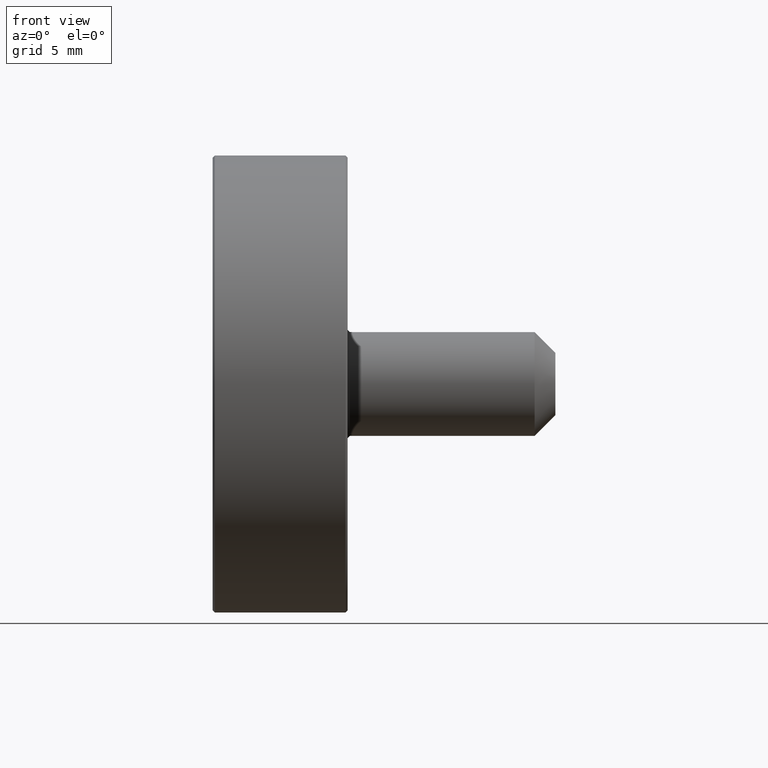
[diagram: clean part render]
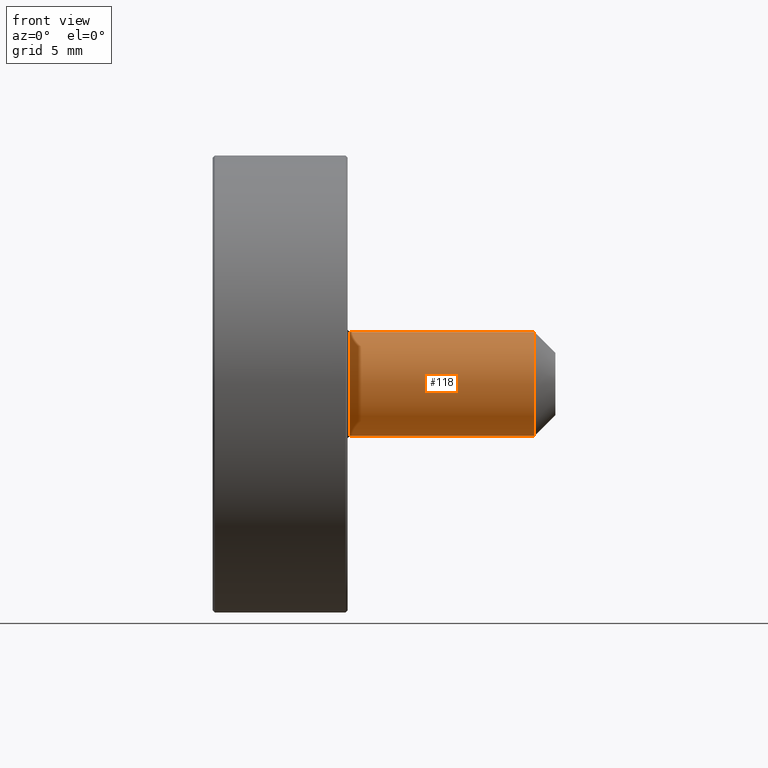
[diagram: same view with one face highlighted and labeled with its STEP entity id]
A machine part, front view. The second image highlights one B-rep face of the part: STEP entity #118.
In plain terms, the highlighted cylindrical surface (bore or boss wall) has radius 2.5 mm, axis along (1, 0, 0).
Its self-contained STEP definition (entity closure, byte-faithful):
#15=CYLINDRICAL_SURFACE('',#134,2.5);
#24=FACE_BOUND('',#47,.T.);
#33=FACE_OUTER_BOUND('',#46,.T.);
#46=EDGE_LOOP('',(#96));
#47=EDGE_LOOP('',(#97));
#62=CIRCLE('',#130,2.5);
#65=CIRCLE('',#135,2.5);
#72=VERTEX_POINT('',#196);
#75=VERTEX_POINT('',#204);
#82=EDGE_CURVE('',#72,#72,#62,.T.);
#85=EDGE_CURVE('',#75,#75,#65,.T.);
#96=ORIENTED_EDGE('',*,*,#85,.F.);
#97=ORIENTED_EDGE('',*,*,#82,.F.);
#118=ADVANCED_FACE('',(#33,#24),#15,.T.);
#130=AXIS2_PLACEMENT_3D('',#197,#154,#155);
#134=AXIS2_PLACEMENT_3D('',#203,#162,#163);
#135=AXIS2_PLACEMENT_3D('',#205,#164,#165);
#154=DIRECTION('center_axis',(-1.,0.,0.));
#155=DIRECTION('ref_axis',(0.,0.,1.));
#162=DIRECTION('center_axis',(1.,0.,0.));
#163=DIRECTION('ref_axis',(0.,0.,1.));
#164=DIRECTION('center_axis',(1.,0.,0.));
#165=DIRECTION('ref_axis',(0.,0.,1.));
#196=CARTESIAN_POINT('',(6.6,-3.06161699786838E-16,-2.5));
#197=CARTESIAN_POINT('Origin',(6.6,0.,0.));
#203=CARTESIAN_POINT('Origin',(6.5,0.,0.));
#204=CARTESIAN_POINT('',(15.5,3.06161699786838E-16,-2.5));
#205=CARTESIAN_POINT('Origin',(15.5,0.,0.));